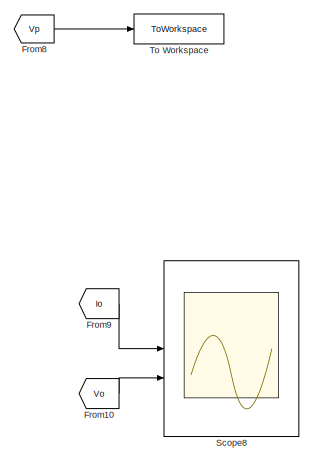
[diagram: root canvas - part 1/5, top right region]
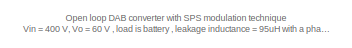
[diagram: root canvas - part 2/5, top left region]
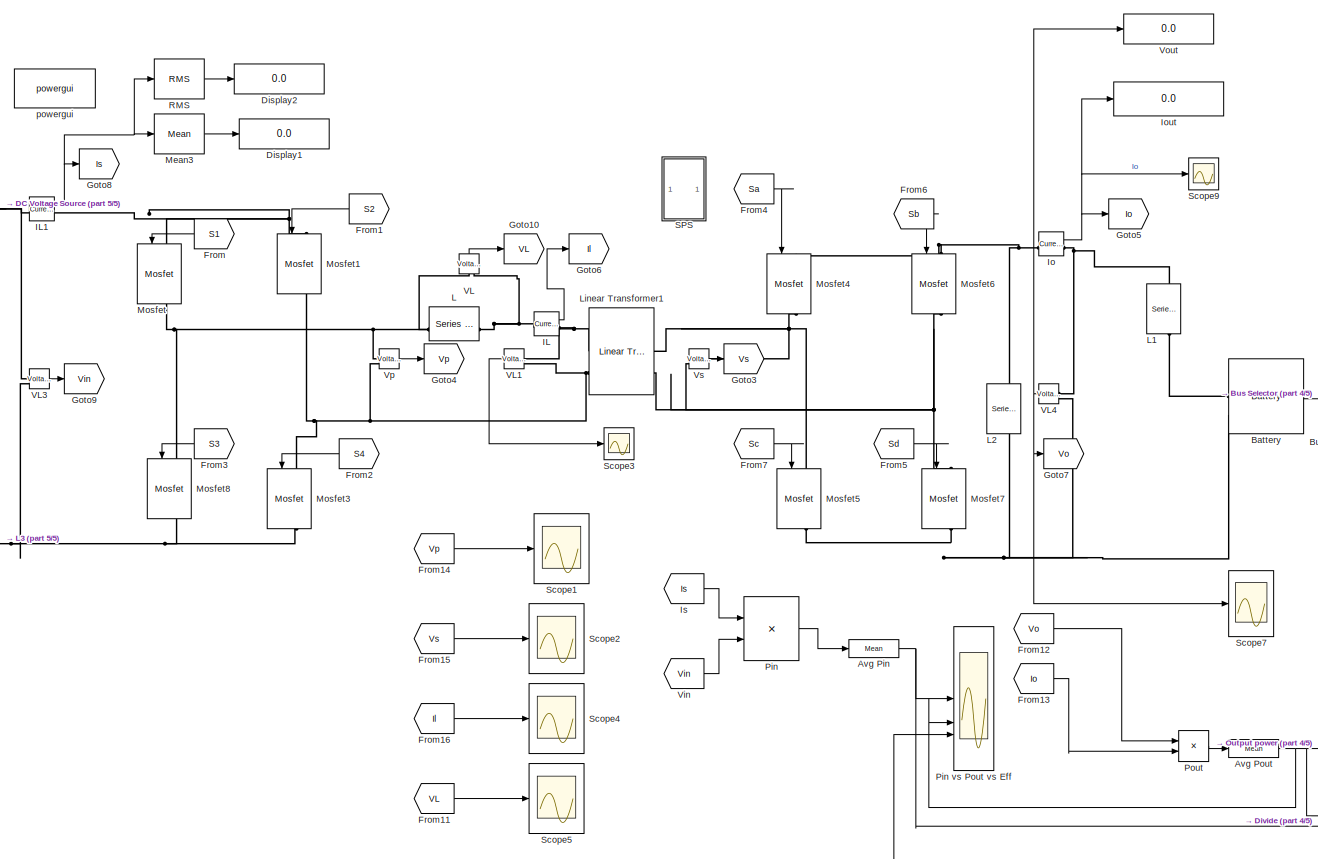
[diagram: root canvas - part 3/5, center side, full height]
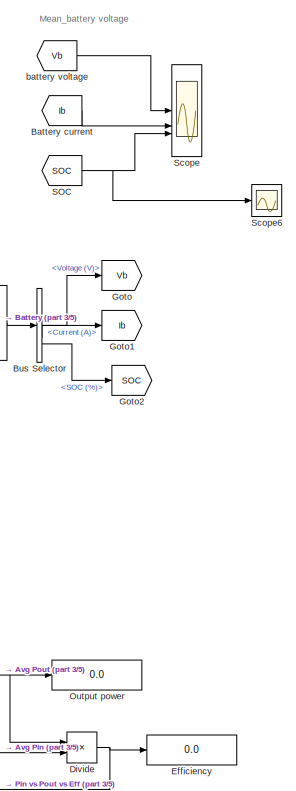
[diagram: root canvas - part 4/5, right side, full height]
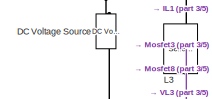
[diagram: root canvas - part 5/5, middle left region]
MODEL slx_44bad3d05092
KIND model
CONFIG AbsTol = auto
CONFIG EnableMultiTasking = off
CONFIG FixedStep = auto
CONFIG MaxStep = auto
CONFIG MinStep = auto
CONFIG RelTol = 1e-3
CONFIG SampleTimeConstraint = Unconstrained
CONFIG SolverName = VariableStepAuto
CONFIG StartTime = 0.0
CONFIG StopTime = 0.3
BLOCK [Reference] Avg Pin  REF=spsMeanLib/Mean
  LibrarySourceBlock = sps_lib/Sensors and Measurements/Mean
  SourceBlock = spsMeanLib/Mean
  SourceType = Mean
BLOCK [Reference] Avg Pout  REF=spsMeanLib/Mean
  LibrarySourceBlock = sps_lib/Sensors and Measurements/Mean
  SourceBlock = spsMeanLib/Mean
  SourceType = Mean
BLOCK [Reference] Battery  REF=spsBatteryLib/Battery
  SourceBlock = spsBatteryLib/Battery
  SourceType = Battery
BLOCK [From] Battery current
  GotoTag = Ib
  TagVisibility = global
BLOCK [BusSelector] Bus Selector
  OutputSignals = Voltage (V),Current (A),SOC (%)
BLOCK [Reference] DC Voltage Source  REF=spsDCVoltageSourceLib/DC Voltage Source
  SourceBlock = spsDCVoltageSourceLib/DC Voltage Source
  SourceType = DC Voltage Source
BLOCK [Display] Display1
  Decimation = 1
BLOCK [Display] Display2
  Decimation = 1
BLOCK [Product] Divide
  Inputs = */
BLOCK [Display] Efficiency
  Decimation = 1
BLOCK [From] From
  GotoTag = S1
  NameLocation = top
  TagVisibility = global
BLOCK [From] From1
  GotoTag = S2
  NameLocation = top
  TagVisibility = global
BLOCK [From] From10
  GotoTag = Vo
  TagVisibility = global
BLOCK [From] From11
  GotoTag = VL
  TagVisibility = global
BLOCK [From] From12
  GotoTag = Vo
  TagVisibility = global
BLOCK [From] From13
  GotoTag = Io
  TagVisibility = global
BLOCK [From] From14
  GotoTag = Vp
  NameLocation = top
  TagVisibility = global
BLOCK [From] From15
  GotoTag = Vs
  TagVisibility = global
BLOCK [From] From16
  GotoTag = Il
  TagVisibility = global
BLOCK [From] From2
  GotoTag = S4
  NameLocation = top
  TagVisibility = global
BLOCK [From] From3
  GotoTag = S3
  NameLocation = top
  TagVisibility = global
BLOCK [From] From4
  GotoTag = Sa
  TagVisibility = global
BLOCK [From] From5
  GotoTag = Sd
  TagVisibility = global
BLOCK [From] From6
  GotoTag = Sb
  TagVisibility = global
BLOCK [From] From7
  GotoTag = Sc
  TagVisibility = global
BLOCK [From] From8
  Commented = on
  GotoTag = Vp
  TagVisibility = global
BLOCK [From] From9
  GotoTag = Io
  TagVisibility = global
BLOCK [Goto] Goto
  GotoTag = Vb
  TagVisibility = global
BLOCK [Goto] Goto1
  GotoTag = Ib
  TagVisibility = global
BLOCK [Goto] Goto10
  GotoTag = VL
  TagVisibility = global
BLOCK [Goto] Goto2
  GotoTag = SOC
  TagVisibility = global
BLOCK [Goto] Goto3
  GotoTag = Vs
  TagVisibility = global
BLOCK [Goto] Goto4
  GotoTag = Vp
  TagVisibility = global
BLOCK [Goto] Goto5
  GotoTag = Io
  TagVisibility = global
BLOCK [Goto] Goto6
  GotoTag = Il
  TagVisibility = global
BLOCK [Goto] Goto7
  GotoTag = Vo
  TagVisibility = global
BLOCK [Goto] Goto8
  GotoTag = Is
  TagVisibility = global
BLOCK [Goto] Goto9
  GotoTag = Vin
  TagVisibility = global
BLOCK [Reference] IL  REF=spsCurrentMeasurementLib/Current Measurement
  SourceBlock = spsCurrentMeasurementLib/Current Measurement
  SourceType = Current Measurement
  UserDataPersistent = on
BLOCK [Reference] IL1  REF=spsCurrentMeasurementLib/Current Measurement
  SourceBlock = spsCurrentMeasurementLib/Current Measurement
  SourceType = Current Measurement
  UserDataPersistent = on
BLOCK [Reference] Io  REF=spsCurrentMeasurementLib/Current Measurement
  SourceBlock = spsCurrentMeasurementLib/Current Measurement
  SourceType = Current Measurement
  UserDataPersistent = on
BLOCK [Display] Iout
  Decimation = 1
BLOCK [From] Is
  GotoTag = Is
  TagVisibility = global
BLOCK [Reference] L  REF=spsSeriesRLCBranchLib/Series RLC Branch
  SourceBlock = spsSeriesRLCBranchLib/Series RLC Branch
  SourceType = Series RLC Branch
BLOCK [Reference] L1  REF=spsSeriesRLCBranchLib/Series RLC Branch
  NameLocation = left
  SourceBlock = spsSeriesRLCBranchLib/Series RLC Branch
  SourceType = Series RLC Branch
BLOCK [Reference] L2  REF=spsSeriesRLCBranchLib/Series RLC Branch
  NameLocation = left
  SourceBlock = spsSeriesRLCBranchLib/Series RLC Branch
  SourceType = Series RLC Branch
BLOCK [Reference] L3  REF=spsSeriesRLCBranchLib/Series RLC Branch
  NameLocation = left
  SourceBlock = spsSeriesRLCBranchLib/Series RLC Branch
  SourceType = Series RLC Branch
BLOCK [Reference] Linear Transformer1  REF=spsLinearTransformerLib/Linear Transformer
  SourceBlock = spsLinearTransformerLib/Linear Transformer
  SourceType = Linear Transformer
BLOCK [Reference] Mean3  REF=spsMeanLib/Mean
  SourceBlock = spsMeanLib/Mean
  SourceType = Mean
BLOCK [Reference] Mosfet  REF=spsMosfetLib/Mosfet
  NameLocation = left
  SourceBlock = spsMosfetLib/Mosfet
  SourceType = Mosfet
BLOCK [Reference] Mosfet1  REF=spsMosfetLib/Mosfet
  NameLocation = left
  SourceBlock = spsMosfetLib/Mosfet
  SourceType = Mosfet
BLOCK [Reference] Mosfet3  REF=spsMosfetLib/Mosfet
  NameLocation = left
  SourceBlock = spsMosfetLib/Mosfet
  SourceType = Mosfet
BLOCK [Reference] Mosfet4  REF=spsMosfetLib/Mosfet
  NameLocation = left
  SourceBlock = spsMosfetLib/Mosfet
  SourceType = Mosfet
BLOCK [Reference] Mosfet5  REF=spsMosfetLib/Mosfet
  NameLocation = left
  SourceBlock = spsMosfetLib/Mosfet
  SourceType = Mosfet
BLOCK [Reference] Mosfet6  REF=spsMosfetLib/Mosfet
  NameLocation = left
  SourceBlock = spsMosfetLib/Mosfet
  SourceType = Mosfet
BLOCK [Reference] Mosfet7  REF=spsMosfetLib/Mosfet
  NameLocation = left
  SourceBlock = spsMosfetLib/Mosfet
  SourceType = Mosfet
BLOCK [Reference] Mosfet8  REF=spsMosfetLib/Mosfet
  NameLocation = left
  SourceBlock = spsMosfetLib/Mosfet
  SourceType = Mosfet
BLOCK [Display] Output power
  Decimation = 1
BLOCK [Product] Pin
BLOCK [Scope] Pin vs Pout vs Eff 
  Floating = off
  NumInputPorts = 3
BLOCK [Product] Pout
BLOCK [Reference] RMS  REF=spsRMSLib/RMS
  SourceBlock = spsRMSLib/RMS
  SourceType = RMS
BLOCK [From] SOC
  GotoTag = SOC
  TagVisibility = global
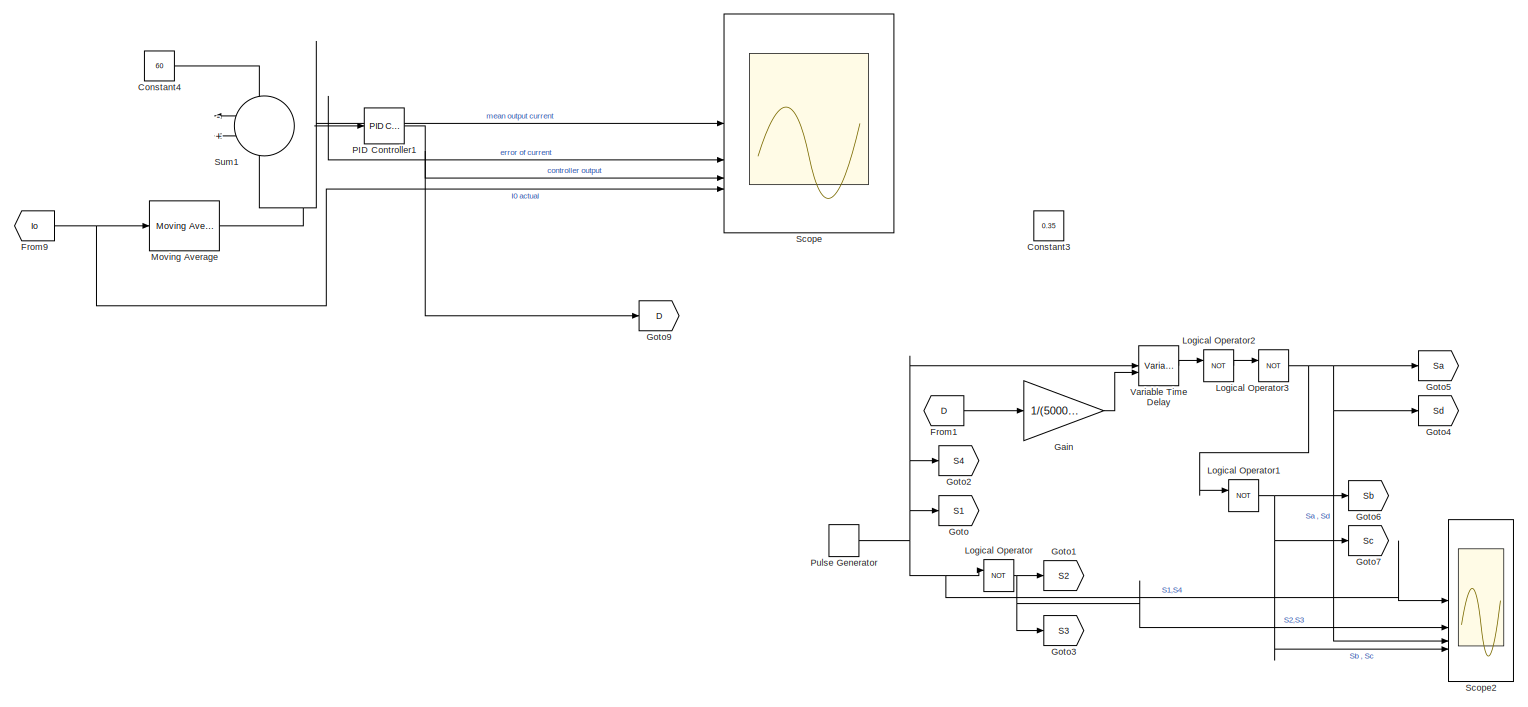
[diagram: SPS - part 1/2, full width, top band]
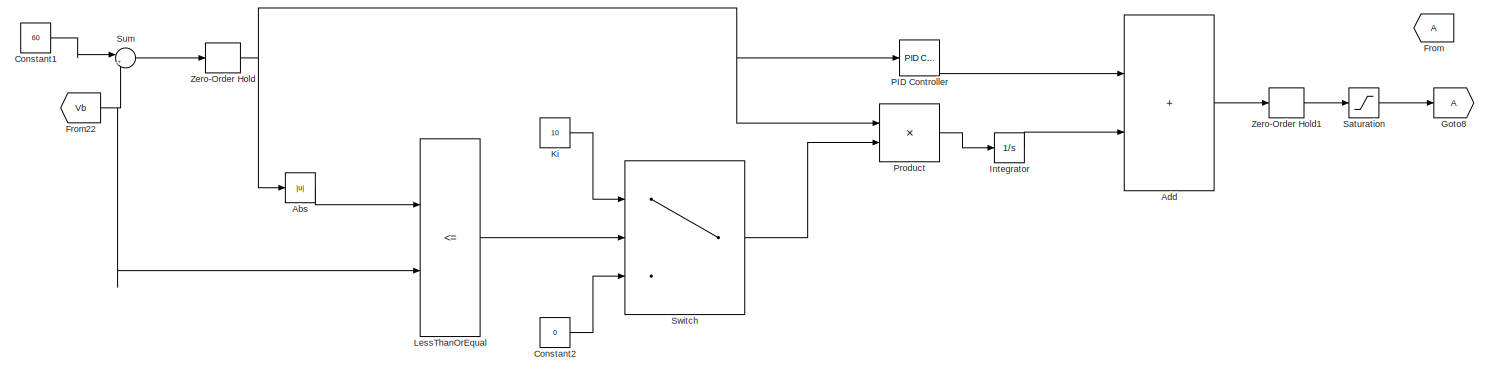
[diagram: SPS - part 2/2, full width, bottom band]
BLOCK [SubSystem] SPS
BLOCK [Abs] SPS/Abs
  Commented = on
  SaturateOnIntegerOverflow = off
BLOCK [Sum] SPS/Add
  Commented = on
  IconShape = rectangular
BLOCK [Constant] SPS/Constant1
  Commented = on
  Value = 60
BLOCK [Constant] SPS/Constant2
  Commented = on
  Value = 0
BLOCK [Constant] SPS/Constant3
  Commented = on
  Value = 0.35
BLOCK [Constant] SPS/Constant4
  Value = 60
BLOCK [From] SPS/From
  Commented = on
BLOCK [From] SPS/From1
  GotoTag = D
BLOCK [From] SPS/From22
  Commented = on
  GotoTag = Vb
  TagVisibility = global
BLOCK [From] SPS/From9
  GotoTag = Io
  TagVisibility = global
BLOCK [Gain] SPS/Gain
  Gain = 1/(50000)
BLOCK [Goto] SPS/Goto
  GotoTag = S1
  TagVisibility = global
BLOCK [Goto] SPS/Goto1
  GotoTag = S2
  TagVisibility = global
BLOCK [Goto] SPS/Goto2
  GotoTag = S4
  TagVisibility = global
BLOCK [Goto] SPS/Goto3
  GotoTag = S3
  TagVisibility = global
BLOCK [Goto] SPS/Goto4
  GotoTag = Sd
  TagVisibility = global
BLOCK [Goto] SPS/Goto5
  GotoTag = Sa
  TagVisibility = global
BLOCK [Goto] SPS/Goto6
  GotoTag = Sb
  TagVisibility = global
BLOCK [Goto] SPS/Goto7
  GotoTag = Sc
  TagVisibility = global
BLOCK [Goto] SPS/Goto8
  Commented = on
BLOCK [Goto] SPS/Goto9
  GotoTag = D
BLOCK [Integrator] SPS/Integrator
  Commented = on
BLOCK [Constant] SPS/Ki
  Commented = on
  Value = 10
BLOCK [RelationalOperator] SPS/LessThanOrEqual
  Commented = on
  InputSameDT = off
  Operator = <=
  OutDataTypeStr = boolean
  RndMeth = Simplest
BLOCK [Logic] SPS/Logical Operator
  AllPortsSameDT = off
  Operator = NOT
  OutDataTypeStr = boolean
BLOCK [Logic] SPS/Logical Operator1
  AllPortsSameDT = off
  Operator = NOT
  OutDataTypeStr = boolean
BLOCK [Logic] SPS/Logical Operator2
  AllPortsSameDT = off
  Operator = NOT
  OutDataTypeStr = boolean
BLOCK [Logic] SPS/Logical Operator3
  AllPortsSameDT = off
  Operator = NOT
  OutDataTypeStr = boolean
BLOCK [Reference] SPS/Moving Average  REF=eeGeneralControl/Moving Average
  LibrarySourceBlock = ee_sl_lib/General Control/Moving Average
  SourceBlock = eeGeneralControl/Moving Average
  SourceType = Moving Average
BLOCK [Reference] SPS/PID Controller  REF=slpidlib/PID Controller
  Commented = on
  LibrarySourceBlock = simulink/Continuous/PID Controller
  SourceBlock = slpidlib/PID Controller
  SourceType = PID 1dof
BLOCK [Reference] SPS/PID Controller1  REF=slpidlib/PID Controller
  LibrarySourceBlock = simulink/Continuous/PID Controller
  SourceBlock = slpidlib/PID Controller
  SourceType = PID 1dof
BLOCK [Product] SPS/Product
  Commented = on
BLOCK [DiscretePulseGenerator] SPS/Pulse Generator
  Period = 1/50000
  PulseType = Time based
  PulseWidth = 50
BLOCK [Saturate] SPS/Saturation
  Commented = on
BLOCK [Scope] SPS/Scope
  Floating = off
  NumInputPorts = 4
BLOCK [Scope] SPS/Scope2
  Floating = off
  NumInputPorts = 4
BLOCK [Sum] SPS/Sum
  Commented = on
  Inputs = |+-
BLOCK [Sum] SPS/Sum1
  Inputs = -+
BLOCK [Switch] SPS/Switch
  Commented = on
  Criteria = u2 > Threshold
  InputSameDT = off
  SaturateOnIntegerOverflow = off
BLOCK [VariableTransportDelay] SPS/Variable Time Delay
  MaximumDelay = 10
BLOCK [ZeroOrderHold] SPS/Zero-Order Hold
  Commented = on
  SampleTime = -1
BLOCK [ZeroOrderHold] SPS/Zero-Order Hold1
  Commented = on
  SampleTime = -1
BLOCK [Scope] Scope
  Floating = off
  NumInputPorts = 3
BLOCK [Scope] Scope1
  Floating = off
  NumInputPorts = 1
BLOCK [Scope] Scope2
  Floating = off
  NumInputPorts = 1
BLOCK [Scope] Scope3
  Floating = off
  NumInputPorts = 1
BLOCK [Scope] Scope4
  Floating = off
  NumInputPorts = 1
BLOCK [Scope] Scope5
  Floating = off
  NumInputPorts = 1
BLOCK [Scope] Scope6
  Floating = off
  NumInputPorts = 1
BLOCK [Scope] Scope7
  Floating = off
  NumInputPorts = 1
BLOCK [Scope] Scope8
  Floating = off
  NumInputPorts = 2
BLOCK [Scope] Scope9
  Floating = off
  NumInputPorts = 1
BLOCK [ToWorkspace] To Workspace
  Commented = on
  FixptAsFi = on
  MaxDataPoints = inf
  SampleTime = -1
  SaveFormat = Structure With Time
  VariableName = Vp
BLOCK [Reference] VL  REF=spsVoltageMeasurementLib/Voltage Measurement
  NameLocation = right
  SourceBlock = spsVoltageMeasurementLib/Voltage Measurement
  SourceType = Voltage Measurement
  UserDataPersistent = on
BLOCK [Reference] VL1  REF=spsVoltageMeasurementLib/Voltage Measurement
  NameLocation = top
  SourceBlock = spsVoltageMeasurementLib/Voltage Measurement
  SourceType = Voltage Measurement
  UserDataPersistent = on
BLOCK [Reference] VL3  REF=spsVoltageMeasurementLib/Voltage Measurement
  SourceBlock = spsVoltageMeasurementLib/Voltage Measurement
  SourceType = Voltage Measurement
  UserDataPersistent = on
BLOCK [Reference] VL4  REF=spsVoltageMeasurementLib/Voltage Measurement
  NameLocation = top
  SourceBlock = spsVoltageMeasurementLib/Voltage Measurement
  SourceType = Voltage Measurement
  UserDataPersistent = on
BLOCK [From] Vin
  GotoTag = Vin
  TagVisibility = global
BLOCK [Display] Vout
  Decimation = 1
BLOCK [Reference] Vp  REF=spsVoltageMeasurementLib/Voltage Measurement
  SourceBlock = spsVoltageMeasurementLib/Voltage Measurement
  SourceType = Voltage Measurement
  UserDataPersistent = on
BLOCK [Reference] Vs  REF=spsVoltageMeasurementLib/Voltage Measurement
  SourceBlock = spsVoltageMeasurementLib/Voltage Measurement
  SourceType = Voltage Measurement
  UserDataPersistent = on
BLOCK [From] battery voltage
  GotoTag = Vb
  TagVisibility = global
BLOCK [Reference] powergui  REF=spspowerguiLib/powergui
  Priority = 1
  SourceBlock = spspowerguiLib/powergui
  SourceType = PSB option menu block
ANNOTATION (root): Open loop DAB converter with SPS modulation technique Vin = 400 V, Vo = 60 V , load is battery , leakage inductance = 95uH with a phase shift of 63 degrees
ANNOTATION (root): Mean_battery voltage
NET Avg Pin:1 -> Divide:2, Pin vs Pout vs Eff :1
NET Avg Pout:1 -> Divide:1, Output power:1, Pin vs Pout vs Eff :2
LINE Battery current:1 -> Scope:2
LINE Battery:1 -> Bus Selector:1
LINE Bus Selector:1 -> Goto:1
LINE Bus Selector:2 -> Goto1:1
LINE Bus Selector:3 -> Goto2:1
NET Divide:1 -> Efficiency:1, Pin vs Pout vs Eff :3
LINE From10:1 -> Scope8:2
LINE From11:1 -> Scope5:1
LINE From12:1 -> Pout:1
LINE From13:1 -> Pout:2
LINE From14:1 -> Scope1:1
LINE From15:1 -> Scope2:1
LINE From16:1 -> Scope4:1
LINE From1:1 -> Mosfet1:1
LINE From2:1 -> Mosfet3:1
LINE From3:1 -> Mosfet8:1
LINE From4:1 -> Mosfet4:1
LINE From5:1 -> Mosfet7:1
LINE From6:1 -> Mosfet6:1
LINE From7:1 -> Mosfet5:1
LINE From8:1 -> To Workspace:1
LINE From9:1 -> Scope8:1
LINE From:1 -> Mosfet:1
NET IL1:1 -> Goto8:1, Mean3:1, RMS:1
LINE IL:1 -> Goto6:1
NET Io:1 -> Goto5:1, Iout:1, Scope9:1
LINE Is:1 -> Pin:1
LINE Mean3:1 -> Display1:1
LINE Pin:1 -> Avg Pin:1
LINE Pout:1 -> Avg Pout:1
LINE RMS:1 -> Display2:1
NET SOC:1 -> Scope6:1, Scope:3
LINE SPS/Abs:1 -> SPS/LessThanOrEqual:1
LINE SPS/Add:1 -> SPS/Zero-Order Hold1:1
LINE SPS/Constant1:1 -> SPS/Sum:1
LINE SPS/Constant2:1 -> SPS/Switch:3
LINE SPS/Constant4:1 -> SPS/Sum1:1
LINE SPS/From1:1 -> SPS/Gain:1
NET SPS/From22:1 -> SPS/LessThanOrEqual:2, SPS/Sum:2
NET SPS/From9:1 -> SPS/Moving Average:1, SPS/Scope:4
LINE SPS/Gain:1 -> SPS/Variable Time Delay:2
LINE SPS/Integrator:1 -> SPS/Add:2
LINE SPS/Ki:1 -> SPS/Switch:1
LINE SPS/LessThanOrEqual:1 -> SPS/Switch:2
NET SPS/Logical Operator1:1 -> SPS/Goto6:1, SPS/Goto7:1, SPS/Scope2:4
LINE SPS/Logical Operator2:1 -> SPS/Logical Operator3:1
NET SPS/Logical Operator3:1 -> SPS/Goto4:1, SPS/Goto5:1, SPS/Logical Operator1:1, SPS/Scope2:3
NET SPS/Logical Operator:1 -> SPS/Goto1:1, SPS/Goto3:1, SPS/Scope2:2
NET SPS/Moving Average:1 -> SPS/Scope:1, SPS/Sum1:2
NET SPS/PID Controller1:1 -> SPS/Goto9:1, SPS/Scope:3
LINE SPS/PID Controller:1 -> SPS/Add:1
LINE SPS/Product:1 -> SPS/Integrator:1
NET SPS/Pulse Generator:1 -> SPS/Goto2:1, SPS/Goto:1, SPS/Logical Operator:1, SPS/Scope2:1, SPS/Variable Time Delay:1
LINE SPS/Saturation:1 -> SPS/Goto8:1
NET SPS/Sum1:1 -> SPS/PID Controller1:1, SPS/Scope:2
LINE SPS/Sum:1 -> SPS/Zero-Order Hold:1
LINE SPS/Switch:1 -> SPS/Product:2
LINE SPS/Variable Time Delay:1 -> SPS/Logical Operator2:1
LINE SPS/Zero-Order Hold1:1 -> SPS/Saturation:1
NET SPS/Zero-Order Hold:1 -> SPS/Abs:1, SPS/PID Controller:1, SPS/Product:1
LINE VL1:1 -> Scope3:1
LINE VL3:1 -> Goto9:1
NET VL4:1 -> Goto7:1, Scope7:1, Vout:1
LINE VL:1 -> Goto10:1
LINE Vin:1 -> Pin:2
LINE Vp:1 -> Goto4:1
LINE Vs:1 -> Goto3:1
LINE battery voltage:1 -> Scope:1
PLINE Battery:LConn1 -- L1:RConn1
PNET net1: Battery:LConn2 -- L2:RConn1 -- Mosfet5:RConn1 -- Mosfet7:RConn1 -- VL4:LConn2
PNET net2: DC Voltage Source:LConn1 -- L3:RConn1 -- Mosfet3:RConn1 -- Mosfet8:RConn1 -- VL3:LConn2
PNET net3: DC Voltage Source:RConn1 -- IL1:LConn1 -- L3:LConn1 -- VL3:LConn1
PNET net4: IL1:RConn1 -- Mosfet1:LConn1 -- Mosfet:LConn1
PNET net5: IL:LConn1 -- L:RConn1 -- VL:LConn2
PNET net6: IL:RConn1 -- Linear Transformer1:LConn1 -- VL1:LConn1
PNET net7: Io:LConn1 -- L2:LConn1 -- Mosfet4:LConn1 -- Mosfet6:LConn1
PNET net8: Io:RConn1 -- L1:LConn1 -- VL4:LConn1
PNET net9: L:LConn1 -- Mosfet8:LConn1 -- Mosfet:RConn1 -- VL:LConn1 -- Vp:LConn1
PNET net10: Linear Transformer1:LConn2 -- Mosfet1:RConn1 -- Mosfet3:LConn1 -- VL1:LConn2 -- Vp:LConn2
PNET net11: Linear Transformer1:RConn1 -- Mosfet4:RConn1 -- Mosfet5:LConn1 -- Vs:LConn1
PNET net12: Linear Transformer1:RConn2 -- Mosfet6:RConn1 -- Mosfet7:LConn1 -- Vs:LConn2
note: NET lines group one-source signal fan-out (src -> all destinations, sorted); 1:1 wires keep LINE; PNET lines group multi-terminal physical nets as a canonical sorted terminal list (undirected conserving connections); 2-terminal nets keep the pairwise PLINE form
